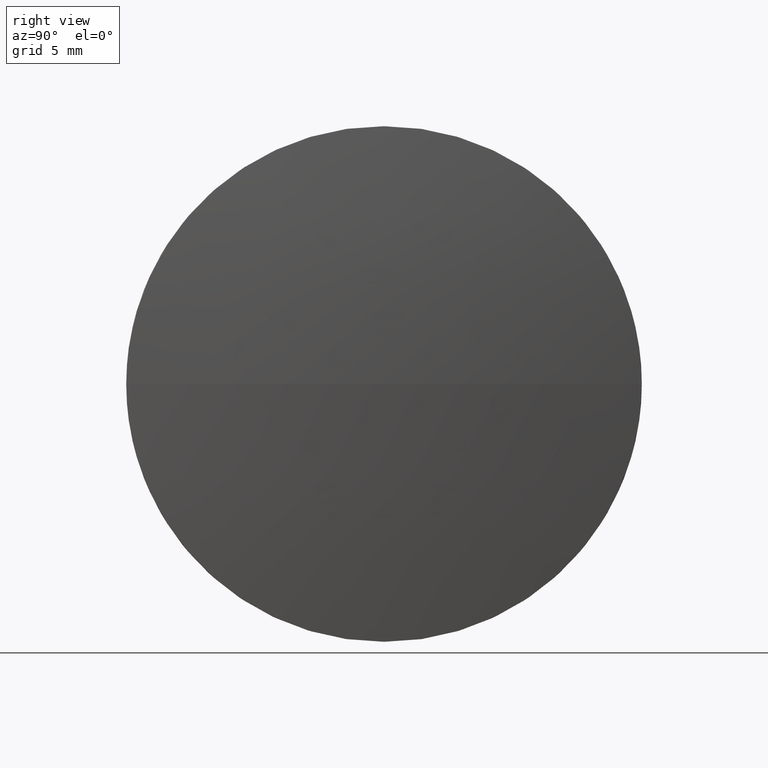
[diagram: clean part render]
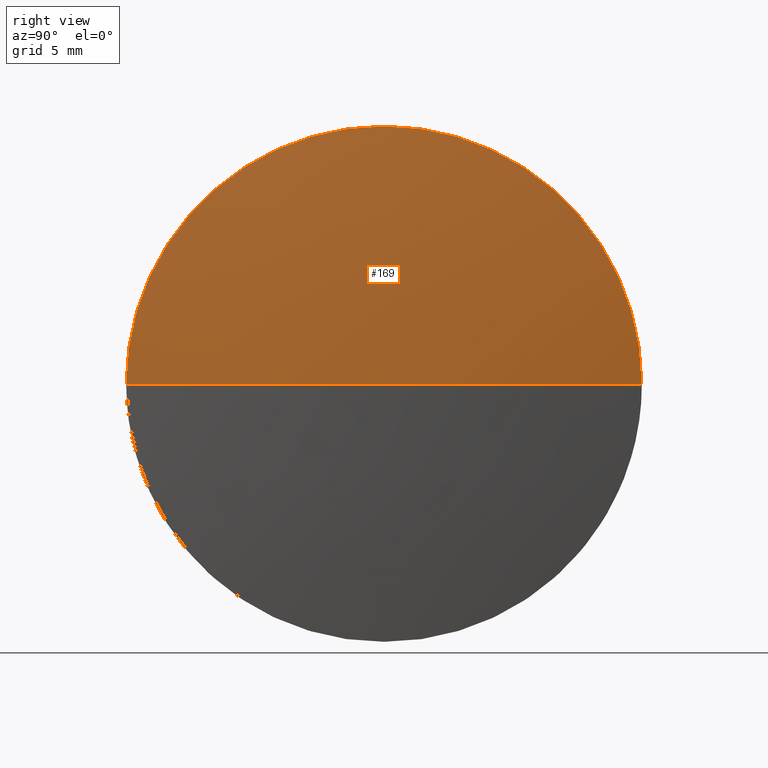
[diagram: same view with one face highlighted and labeled with its STEP entity id]
A machine part, right view. The second image highlights one B-rep face of the part: STEP entity #169.
In plain terms, the highlighted spherical surface has radius 103.176 mm.
Its self-contained STEP definition (entity closure, byte-faithful):
#1 = CIRCLE ( 'NONE', #144, 12.49999999999999600 ) ;
#9 = ORIENTED_EDGE ( 'NONE', *, *, #43, .T. ) ;
#10 = EDGE_CURVE ( 'NONE', #66, #52, #1, .T. ) ;
#16 = CARTESIAN_POINT ( 'NONE',  ( 411.3519367756050500, 102.7002292437993300, 0.0000000000000000000 ) ) ;
#17 = CARTESIAN_POINT ( 'NONE',  ( 412.1119367756050500, 90.20022924379924200, 0.0000000000000000000 ) ) ;
#22 = ORIENTED_EDGE ( 'NONE', *, *, #57, .F. ) ;
#23 = FACE_OUTER_BOUND ( 'NONE', #118, .T. ) ;
#25 = VERTEX_POINT ( 'NONE', #16 ) ;
#27 = EDGE_CURVE ( 'NONE', #52, #25, #136, .T. ) ;
#33 = DIRECTION ( 'NONE',  ( 0.0000000000000000000, 0.0000000000000000000, 1.000000000000000000 ) ) ;
#41 = CIRCLE ( 'NONE', #116, 103.1760526315793200 ) ;
#42 = DIRECTION ( 'NONE',  ( 0.0000000000000000000, 1.000000000000000000, 1.224646799147353200E-016 ) ) ;
#43 = EDGE_CURVE ( 'NONE', #128, #25, #149, .T. ) ;
#45 = DIRECTION ( 'NONE',  ( 1.000000000000000000, 0.0000000000000000000, 0.0000000000000000000 ) ) ;
#52 = VERTEX_POINT ( 'NONE', #110 ) ;
#57 = EDGE_CURVE ( 'NONE', #128, #66, #41, .T. ) ;
#58 = CARTESIAN_POINT ( 'NONE',  ( 411.3519367756050500, 90.20022924379941300, 0.0000000000000000000 ) ) ;
#66 = VERTEX_POINT ( 'NONE', #154 ) ;
#68 = DIRECTION ( 'NONE',  ( -1.000000000000000000, -0.0000000000000000000, -0.0000000000000000000 ) ) ;
#69 = DIRECTION ( 'NONE',  ( -0.0000000000000000000, 0.0000000000000000000, 1.000000000000000000 ) ) ;
#72 = CARTESIAN_POINT ( 'NONE',  ( 411.3519367756050500, 90.20022924379941300, 0.0000000000000000000 ) ) ;
#76 = DIRECTION ( 'NONE',  ( 0.0000000000000000000, 1.000000000000000000, 0.0000000000000000000 ) ) ;
#81 = AXIS2_PLACEMENT_3D ( 'NONE', #58, #68, #173 ) ;
#83 = AXIS2_PLACEMENT_3D ( 'NONE', #126, #69, #45 ) ;
#99 = DIRECTION ( 'NONE',  ( -1.000000000000000000, -0.0000000000000000000, -0.0000000000000000000 ) ) ;
#108 = SPHERICAL_SURFACE ( 'NONE', #170, 103.1760526315793200 ) ;
#110 = CARTESIAN_POINT ( 'NONE',  ( 411.3519367756050500, 90.20022924379941300, 12.49999999999999600 ) ) ;
#111 = DIRECTION ( 'NONE',  ( 0.0000000000000000000, 1.224646799147353200E-016, -1.000000000000000000 ) ) ;
#112 = DIRECTION ( 'NONE',  ( -0.0000000000000000000, 0.0000000000000000000, -1.000000000000000000 ) ) ;
#116 = AXIS2_PLACEMENT_3D ( 'NONE', #140, #111, #42 ) ;
#118 = EDGE_LOOP ( 'NONE', ( #22, #9, #160, #139 ) ) ;
#126 = CARTESIAN_POINT ( 'NONE',  ( 308.9358841440257500, 90.20022924379924200, 0.0000000000000000000 ) ) ;
#128 = VERTEX_POINT ( 'NONE', #17 ) ;
#133 = CARTESIAN_POINT ( 'NONE',  ( 308.9358841440257500, 90.20022924379924200, 0.0000000000000000000 ) ) ;
#136 = CIRCLE ( 'NONE', #81, 12.49999999999999600 ) ;
#139 = ORIENTED_EDGE ( 'NONE', *, *, #10, .F. ) ;
#140 = CARTESIAN_POINT ( 'NONE',  ( 308.9358841440257500, 90.20022924379924200, 0.0000000000000000000 ) ) ;
#144 = AXIS2_PLACEMENT_3D ( 'NONE', #72, #99, #33 ) ;
#149 = CIRCLE ( 'NONE', #83, 103.1760526315793100 ) ;
#154 = CARTESIAN_POINT ( 'NONE',  ( 411.3519367756050500, 77.70022924379932800, -1.530808498934180100E-015 ) ) ;
#160 = ORIENTED_EDGE ( 'NONE', *, *, #27, .F. ) ;
#169 = ADVANCED_FACE ( 'NONE', ( #23 ), #108, .T. ) ;
#170 = AXIS2_PLACEMENT_3D ( 'NONE', #133, #112, #76 ) ;
#173 = DIRECTION ( 'NONE',  ( 0.0000000000000000000, 0.0000000000000000000, 1.000000000000000000 ) ) ;